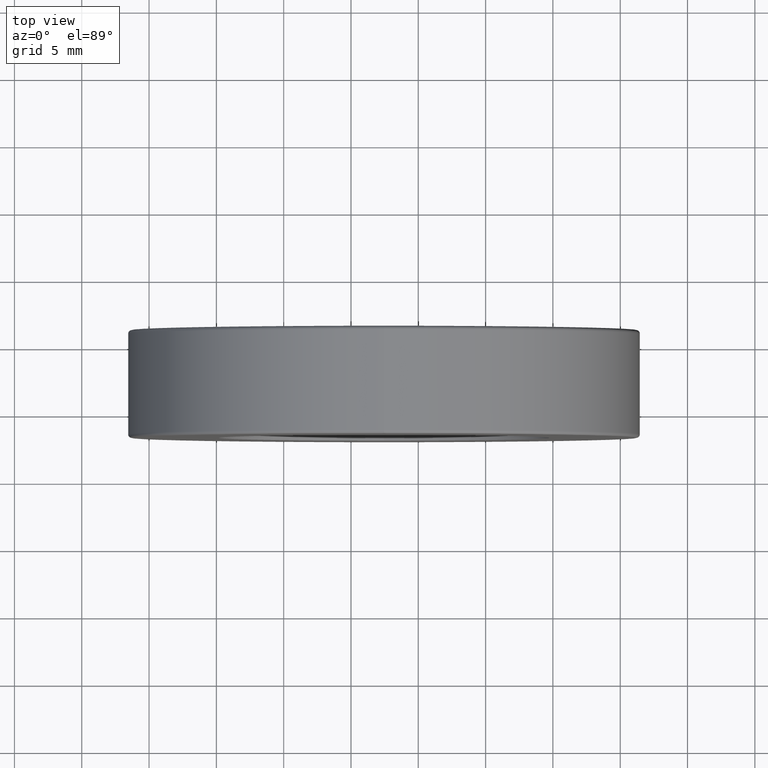
[diagram: clean part render]
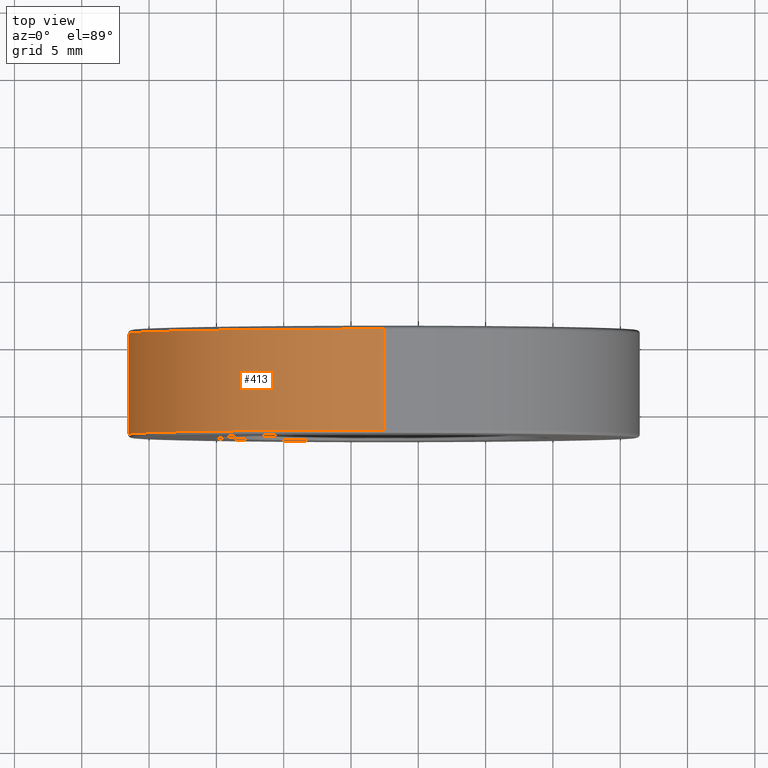
[diagram: same view with one face highlighted and labeled with its STEP entity id]
A machine part, top view. The second image highlights one B-rep face of the part: STEP entity #413.
In plain terms, the highlighted cylindrical surface (partial cylindrical patch) has radius 19 mm, axis along (-0, -1, -0).
Its self-contained STEP definition (entity closure, byte-faithful):
#7 = CARTESIAN_POINT ( 'NONE',  ( -7.546808913101048510, 0.8564048726972719461, 56.99999999999999289 ) ) ;
#13 = CYLINDRICAL_SURFACE ( 'NONE', #504, 19.00000000000000000 ) ;
#40 = LINE ( 'NONE', #557, #454 ) ;
#43 = VERTEX_POINT ( 'NONE', #521 ) ;
#68 = VERTEX_POINT ( 'NONE', #408 ) ;
#74 = AXIS2_PLACEMENT_3D ( 'NONE', #515, #470, #369 ) ;
#83 = CIRCLE ( 'NONE', #590, 18.99999999999999645 ) ;
#118 = DIRECTION ( 'NONE',  ( -0.000000000000000000, -1.000000000000000000, -0.000000000000000000 ) ) ;
#181 = VERTEX_POINT ( 'NONE', #7 ) ;
#217 = EDGE_LOOP ( 'NONE', ( #586, #297, #305, #552 ) ) ;
#222 = DIRECTION ( 'NONE',  ( -0.000000000000000000, -1.000000000000000000, -0.000000000000000000 ) ) ;
#254 = LINE ( 'NONE', #443, #577 ) ;
#284 = EDGE_CURVE ( 'NONE', #68, #547, #83, .T. ) ;
#297 = ORIENTED_EDGE ( 'NONE', *, *, #602, .T. ) ;
#305 = ORIENTED_EDGE ( 'NONE', *, *, #517, .T. ) ;
#351 = CARTESIAN_POINT ( 'NONE',  ( -7.546808913101045846, -6.643595127302727832, 56.99999999999999289 ) ) ;
#369 = DIRECTION ( 'NONE',  ( 0.000000000000000000, 0.000000000000000000, 1.000000000000000000 ) ) ;
#381 = CARTESIAN_POINT ( 'NONE',  ( -7.546808913101048510, 1.106404872697272168, 38.00000000000000000 ) ) ;
#408 = CARTESIAN_POINT ( 'NONE',  ( -7.546808913101048510, -6.643595127302727832, 19.00000000000000000 ) ) ;
#413 = ADVANCED_FACE ( 'NONE', ( #428 ), #13, .T. ) ;
#428 = FACE_OUTER_BOUND ( 'NONE', #217, .T. ) ;
#443 = CARTESIAN_POINT ( 'NONE',  ( -7.546808913101048510, 1.106404872697272168, 19.00000000000000000 ) ) ;
#444 = CIRCLE ( 'NONE', #74, 18.99999999999999645 ) ;
#448 = DIRECTION ( 'NONE',  ( 0.000000000000000000, 0.000000000000000000, -1.000000000000000000 ) ) ;
#450 = DIRECTION ( 'NONE',  ( -0.000000000000000000, -1.000000000000000000, -0.000000000000000000 ) ) ;
#454 = VECTOR ( 'NONE', #222, 1000.000000000000000 ) ;
#470 = DIRECTION ( 'NONE',  ( -0.000000000000000000, -1.000000000000000000, -0.000000000000000000 ) ) ;
#483 = DIRECTION ( 'NONE',  ( 0.000000000000000000, 1.000000000000000000, 0.000000000000000000 ) ) ;
#504 = AXIS2_PLACEMENT_3D ( 'NONE', #381, #450, #448 ) ;
#515 = CARTESIAN_POINT ( 'NONE',  ( -7.546808913101048510, 0.8564048726972719461, 38.00000000000000000 ) ) ;
#517 = EDGE_CURVE ( 'NONE', #43, #68, #254, .T. ) ;
#521 = CARTESIAN_POINT ( 'NONE',  ( -7.546808913101044958, 0.8564048726972719461, 19.00000000000000000 ) ) ;
#526 = CARTESIAN_POINT ( 'NONE',  ( -7.546808913101048510, -6.643595127302727832, 38.00000000000000000 ) ) ;
#530 = DIRECTION ( 'NONE',  ( 0.000000000000000000, 0.000000000000000000, 1.000000000000000000 ) ) ;
#547 = VERTEX_POINT ( 'NONE', #351 ) ;
#552 = ORIENTED_EDGE ( 'NONE', *, *, #284, .T. ) ;
#557 = CARTESIAN_POINT ( 'NONE',  ( -7.546808913101045846, 1.106404872697272168, 56.99999999999999289 ) ) ;
#566 = EDGE_CURVE ( 'NONE', #181, #547, #40, .T. ) ;
#577 = VECTOR ( 'NONE', #118, 1000.000000000000000 ) ;
#586 = ORIENTED_EDGE ( 'NONE', *, *, #566, .F. ) ;
#590 = AXIS2_PLACEMENT_3D ( 'NONE', #526, #483, #530 ) ;
#602 = EDGE_CURVE ( 'NONE', #181, #43, #444, .T. ) ;